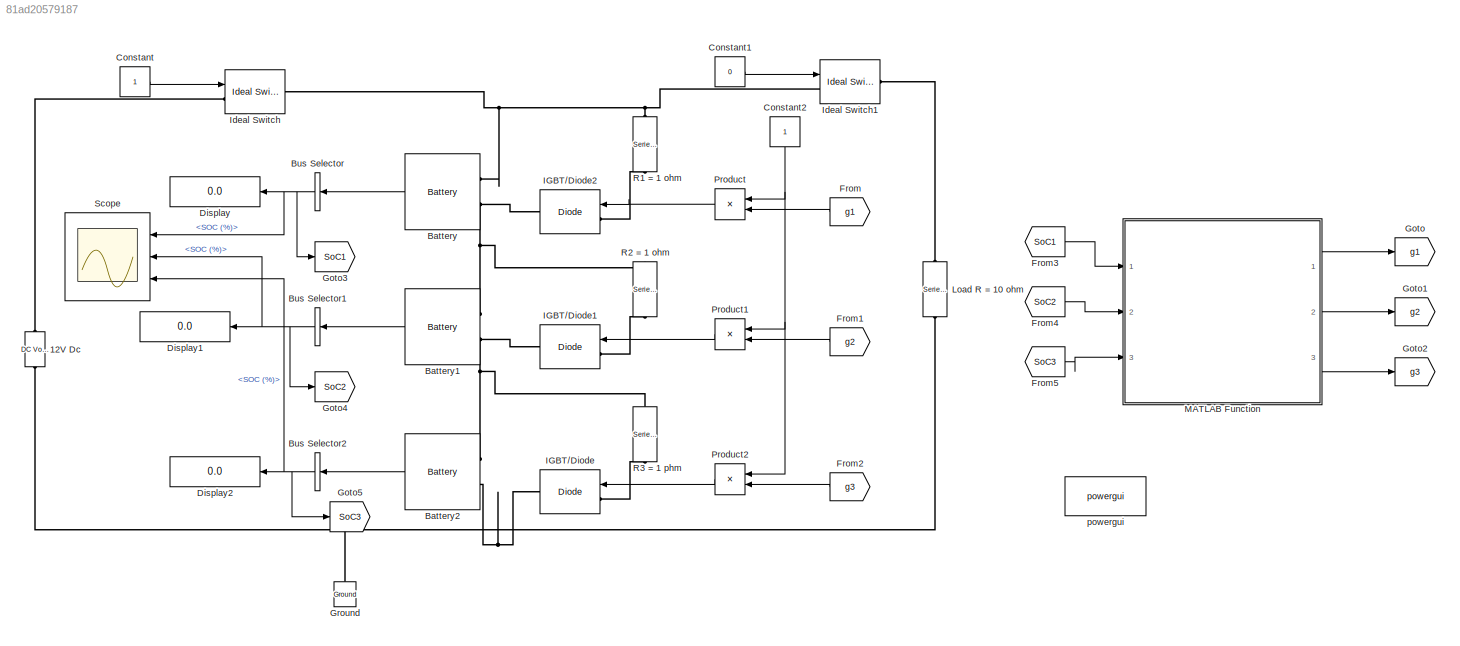
MODEL slx_81ad20579187
KIND model
CONFIG AbsTol = auto
CONFIG EnableMultiTasking = off
CONFIG FixedStep = auto
CONFIG MaxStep = auto
CONFIG MinStep = auto
CONFIG RelTol = 1e-3
CONFIG SampleTimeConstraint = Unconstrained
CONFIG Solver = VariableStepAuto
CONFIG SolverName = VariableStepAuto
CONFIG StartTime = 0.0
CONFIG StopTime = 1200
BLOCK [Reference] 12V Dc                 REF=powerlib/Electrical Sources/DC Voltage Source
  Ports = [0, 0, 0, 0, 0, 1, 1]
  SourceBlock = powerlib/Electrical Sources/DC Voltage Source
  SourceType = DC Voltage Source
BLOCK [Reference] Battery  REF=electricdrivelib/Extra Sources/Battery
  Ports = [0, 1, 0, 0, 0, 2]
  SourceBlock = electricdrivelib/Extra Sources/Battery
  SourceType = Battery
BLOCK [Reference] Battery1  REF=electricdrivelib/Extra Sources/Battery
  Ports = [0, 1, 0, 0, 0, 2]
  SourceBlock = electricdrivelib/Extra Sources/Battery
  SourceType = Battery
BLOCK [Reference] Battery2  REF=electricdrivelib/Extra Sources/Battery
  Ports = [0, 1, 0, 0, 0, 2]
  SourceBlock = electricdrivelib/Extra Sources/Battery
  SourceType = Battery
BLOCK [BusSelector] Bus Selector
  OutputSignals = SOC (%)
  Ports = [1, 1]
BLOCK [BusSelector] Bus Selector1
  OutputSignals = SOC (%)
  Ports = [1, 1]
BLOCK [BusSelector] Bus Selector2
  OutputSignals = SOC (%)
  Ports = [1, 1]
BLOCK [Constant] Constant
BLOCK [Constant] Constant1
  Value = 0
BLOCK [Constant] Constant2
BLOCK [Display] Display
  Decimation = 1
  Ports = [1]
BLOCK [Display] Display1
  Decimation = 1
  Ports = [1]
BLOCK [Display] Display2
  Decimation = 1
  Ports = [1]
BLOCK [From] From
  GotoTag = g1
BLOCK [From] From1
  GotoTag = g2
BLOCK [From] From2
  GotoTag = g3
BLOCK [From] From3
  GotoTag = SoC1
BLOCK [From] From4
  GotoTag = SoC2
BLOCK [From] From5
  GotoTag = SoC3
BLOCK [Goto] Goto
  GotoTag = g1
BLOCK [Goto] Goto1
  GotoTag = g2
BLOCK [Goto] Goto2
  GotoTag = g3
BLOCK [Goto] Goto3
  GotoTag = SoC1
BLOCK [Goto] Goto4
  GotoTag = SoC2
BLOCK [Goto] Goto5
  GotoTag = SoC3
BLOCK [Reference] Ground  REF=powerlib/Elements/Ground
  Ports = [0, 0, 0, 0, 0, 1]
  SourceBlock = powerlib/Elements/Ground
  SourceType = Ground
BLOCK [Reference] IGBT//Diode  REF=powerlib/Power Electronics/IGBT//Diode
  Ports = [1, 0, 0, 0, 0, 1, 1]
  SourceBlock = powerlib/Power Electronics/IGBT//Diode
  SourceType = IGBT/Diode
BLOCK [Reference] IGBT//Diode1  REF=powerlib/Power Electronics/IGBT//Diode
  Ports = [1, 0, 0, 0, 0, 1, 1]
  SourceBlock = powerlib/Power Electronics/IGBT//Diode
  SourceType = IGBT/Diode
BLOCK [Reference] IGBT//Diode2  REF=powerlib/Power Electronics/IGBT//Diode
  Ports = [1, 0, 0, 0, 0, 1, 1]
  SourceBlock = powerlib/Power Electronics/IGBT//Diode
  SourceType = IGBT/Diode
BLOCK [Reference] Ideal Switch  REF=powerlib/Power Electronics/Ideal Switch
  Ports = [1, 0, 0, 0, 0, 1, 1]
  SourceBlock = powerlib/Power Electronics/Ideal Switch
  SourceType = Ideal Switch
BLOCK [Reference] Ideal Switch1  REF=powerlib/Power Electronics/Ideal Switch
  Ports = [1, 0, 0, 0, 0, 1, 1]
  SourceBlock = powerlib/Power Electronics/Ideal Switch
  SourceType = Ideal Switch
BLOCK [Reference] Load R = 10 ohm  REF=powerlib/Elements/Series RLC Branch
  Ports = [0, 0, 0, 0, 0, 1, 1]
  SourceBlock = powerlib/Elements/Series RLC Branch
  SourceType = Series RLC Branch
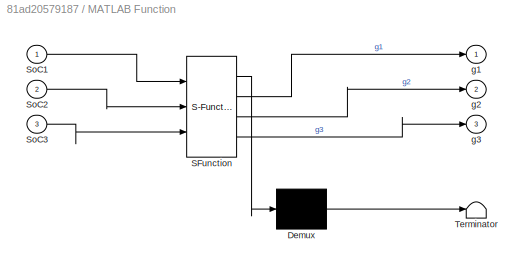
BLOCK [SubSystem] MATLAB Function
  ErrorFcn = Stateflow.Translate.translate
  PermitHierarchicalResolution = ExplicitOnly
  Ports = [3, 3]
  SFBlockType = MATLAB Function
  TreatAsAtomicUnit = on
BLOCK [Demux] MATLAB Function/ Demux 
  Outputs = 1
  Ports = [1, 1]
BLOCK [S-Function] MATLAB Function/ SFunction 
  EnableBusSupport = on
  FunctionName = sf_sfun
  PortCounts = [3 4]
  Ports = [3, 4]
  SFcnIsStateOwnerBlock = off
  SFunctionDeploymentMode = off
  Tag = Stateflow S-Function Passive_Cell_Balancing11 2
BLOCK [Terminator] MATLAB Function/ Terminator 
BLOCK [Inport] MATLAB Function/SoC1
BLOCK [Inport] MATLAB Function/SoC2
  Port = 2
BLOCK [Inport] MATLAB Function/SoC3
  Port = 3
BLOCK [Outport] MATLAB Function/g1
BLOCK [Outport] MATLAB Function/g2
  Port = 2
BLOCK [Outport] MATLAB Function/g3
  Port = 3
BLOCK [Product] Product
  Ports = [2, 1]
BLOCK [Product] Product1
  Ports = [2, 1]
BLOCK [Product] Product2
  Ports = [2, 1]
BLOCK [Reference] R1 = 1 ohm  REF=powerlib/Elements/Series RLC Branch
  Ports = [0, 0, 0, 0, 0, 1, 1]
  SourceBlock = powerlib/Elements/Series RLC Branch
  SourceType = Series RLC Branch
BLOCK [Reference] R2 = 1 ohm  REF=powerlib/Elements/Series RLC Branch
  Ports = [0, 0, 0, 0, 0, 1, 1]
  SourceBlock = powerlib/Elements/Series RLC Branch
  SourceType = Series RLC Branch
BLOCK [Reference] R3 = 1 phm  REF=powerlib/Elements/Series RLC Branch
  Ports = [0, 0, 0, 0, 0, 1, 1]
  SourceBlock = powerlib/Elements/Series RLC Branch
  SourceType = Series RLC Branch
BLOCK [Scope] Scope
  Floating = off
  NumInputPorts = 3
  Ports = [3]
  ScopeSpecificationString = Simulink.scopes.TimeScopeBlockCfg('CurrentConfiguration', extmgr.ConfigurationSet(extmgr.Configuration('Core','General UI',true),extmgr.Configuration('Core','Source UI',true),extmgr.Configuration('Sources','WiredSimulink',true),extmgr.Configuration('Visuals','Time Domain',true,'SerializedDisplays',{struct('MinYLimReal','-7.62675','MaxYLimReal','68.97551','YLabelReal','','MinYLimMag','0.00000','Max...<+1500ch>
BLOCK [Reference] powergui  REF=powerlib/powergui
  Ports = []
  Priority = 1
  SourceBlock = powerlib/powergui
  SourceType = PSB option menu block
LINE Battery1:1 -> Bus Selector1:1
LINE Battery2:1 -> Bus Selector2:1
LINE Battery:1 -> Bus Selector:1
NET Bus Selector1:1 -> Display1:1, Goto4:1, Scope:2
NET Bus Selector2:1 -> Display2:1, Goto5:1, Scope:3
NET Bus Selector:1 -> Display:1, Goto3:1, Scope:1
LINE Constant1:1 -> Ideal Switch1:1
NET Constant2:1 -> Product1:1, Product2:1, Product:1
LINE Constant:1 -> Ideal Switch:1
LINE From1:1 -> Product1:2
LINE From2:1 -> Product2:2
LINE From3:1 -> MATLAB Function:1
LINE From4:1 -> MATLAB Function:2
LINE From5:1 -> MATLAB Function:3
LINE From:1 -> Product:2
LINE MATLAB Function:1 -> Goto:1
LINE MATLAB Function:2 -> Goto1:1
LINE MATLAB Function:3 -> Goto2:1
LINE Product1:1 -> IGBT//Diode1:1
LINE Product2:1 -> IGBT//Diode:1
LINE Product:1 -> IGBT//Diode2:1
PNET net1: 12V Dc               :LConn1 -- Battery2:LConn2 -- Ground:LConn1 -- IGBT//Diode:RConn1 -- Load R = 10 ohm:RConn1
PLINE 12V Dc               :RConn1 -- Ideal Switch:LConn1
PNET net2: Battery1:LConn1 -- Battery:LConn2 -- IGBT//Diode2:RConn1 -- R2 = 1 ohm:LConn1
PNET net3: Battery1:LConn2 -- Battery2:LConn1 -- IGBT//Diode1:RConn1 -- R3 = 1 phm:LConn1
PNET net4: Battery:LConn1 -- Ideal Switch1:LConn1 -- Ideal Switch:RConn1 -- R1 = 1 ohm:LConn1
PLINE IGBT//Diode1:LConn1 -- R2 = 1 ohm:RConn1
PLINE IGBT//Diode2:LConn1 -- R1 = 1 ohm:RConn1
PLINE IGBT//Diode:LConn1 -- R3 = 1 phm:RConn1
PLINE Ideal Switch1:RConn1 -- Load R = 10 ohm:LConn1
note: NET lines group one-source signal fan-out (src -> all destinations, sorted); 1:1 wires keep LINE; PNET lines group multi-terminal physical nets as a canonical sorted terminal list (undirected conserving connections); 2-terminal nets keep the pairwise PLINE form
CHART MATLAB Function states=1 transitions=1
  STATE_LABEL 'eML_blk_kernel()'
  STATE_LABEL 'SCRIPT:\nfunction [g1,g2,g3] = fcn(SoC1,SoC2,SoC3)\n\nSoC1=int32(SoC1);\nSoC2=int32(SoC2);\nSoC3=int32(SoC3);\n \nif SoC1>SoC2||SoC1>SoC3\n    g1=1;\nelse \n    g1=0;\nend\nif SoC2>SoC1||SoC2>SoC3\n    g2=1;\nelse\n    g2=0;\nend \nif SoC3>SoC1||SoC3>SoC2\ng3=1;\nelse \n    g3=0;\nend \n\n\n'
